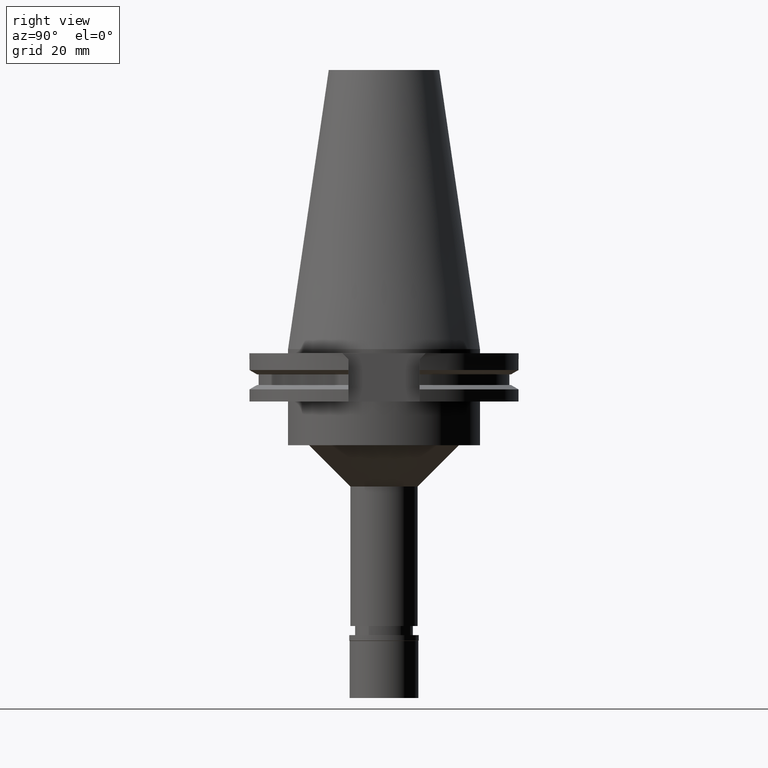
[diagram: clean part render]
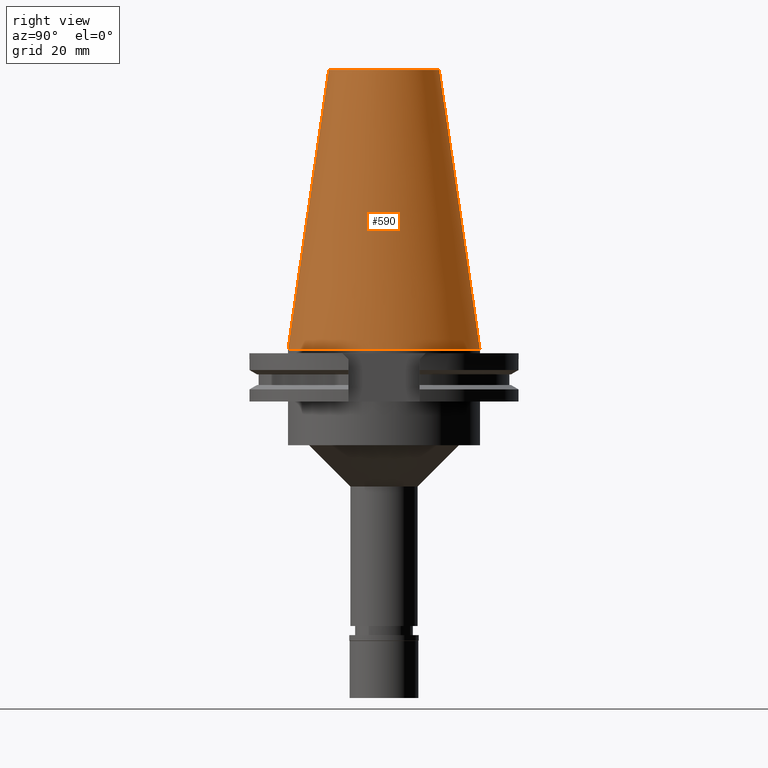
[diagram: same view with one face highlighted and labeled with its STEP entity id]
A machine part, right view. The second image highlights one B-rep face of the part: STEP entity #590.
In plain terms, the highlighted conical surface has half-angle 8.297 deg.
Its self-contained STEP definition (entity closure, byte-faithful):
#264 = VECTOR ( 'NONE', #1733, 1000.000000000000114 ) ;
#371 = DIRECTION ( 'NONE',  ( 0.0000000000000000000, 0.0000000000000000000, -1.000000000000000000 ) ) ;
#590 = ADVANCED_FACE ( 'NONE', ( #1982 ), #726, .T. ) ;
#726 = CONICAL_SURFACE ( 'NONE', #1159, 27.51666211194000056, 0.1448125860318199565 ) ;
#809 = EDGE_CURVE ( 'NONE', #969, #2576, #841, .T. ) ;
#841 = CIRCLE ( 'NONE', #2717, 20.10832422388000040 ) ;
#969 = VERTEX_POINT ( 'NONE', #1630 ) ;
#1048 = AXIS2_PLACEMENT_3D ( 'NONE', #2624, #2890, #1810 ) ;
#1159 = AXIS2_PLACEMENT_3D ( 'NONE', #3217, #371, #2219 ) ;
#1165 = CARTESIAN_POINT ( 'NONE',  ( 0.0000000000000000000, 20.10832422387000307, 101.5999999999999943 ) ) ;
#1437 = EDGE_CURVE ( 'NONE', #2576, #1624, #1653, .T. ) ;
#1492 = CARTESIAN_POINT ( 'NONE',  ( 0.0000000000000000000, 34.92499999999999716, 4.476419235289000232E-13 ) ) ;
#1570 = CARTESIAN_POINT ( 'NONE',  ( 0.0000000000000000000, 1.846767373113999857E-14, 101.5999999999999943 ) ) ;
#1583 = CARTESIAN_POINT ( 'NONE',  ( 0.0000000000000000000, -20.10832422387000307, 101.5999999999999943 ) ) ;
#1624 = VERTEX_POINT ( 'NONE', #2226 ) ;
#1630 = CARTESIAN_POINT ( 'NONE',  ( 0.0000000000000000000, 20.10832422388000040, 101.5999999999999943 ) ) ;
#1636 = DIRECTION ( 'NONE',  ( 0.0000000000000000000, -0.1443069799456937474, -0.9895329683941577192 ) ) ;
#1653 = LINE ( 'NONE', #1583, #2517 ) ;
#1687 = ORIENTED_EDGE ( 'NONE', *, *, #1437, .T. ) ;
#1733 = DIRECTION ( 'NONE',  ( 0.0000000000000000000, 0.1443069799456937474, -0.9895329683941577192 ) ) ;
#1736 = CIRCLE ( 'NONE', #1048, 34.92499999999999716 ) ;
#1810 = DIRECTION ( 'NONE',  ( 0.0000000000000000000, 1.000000000000000000, 0.0000000000000000000 ) ) ;
#1843 = ORIENTED_EDGE ( 'NONE', *, *, #809, .T. ) ;
#1982 = FACE_OUTER_BOUND ( 'NONE', #3000, .T. ) ;
#2174 = EDGE_CURVE ( 'NONE', #969, #2936, #3015, .T. ) ;
#2219 = DIRECTION ( 'NONE',  ( 0.0000000000000000000, -1.000000000000000000, 0.0000000000000000000 ) ) ;
#2226 = CARTESIAN_POINT ( 'NONE',  ( 0.0000000000000000000, -34.92499999999999716, 4.476419235289000232E-13 ) ) ;
#2241 = CARTESIAN_POINT ( 'NONE',  ( 0.0000000000000000000, -20.10832422388000040, 101.5999999999999943 ) ) ;
#2275 = DIRECTION ( 'NONE',  ( 0.0000000000000000000, 0.0000000000000000000, -1.000000000000000000 ) ) ;
#2517 = VECTOR ( 'NONE', #1636, 1000.000000000000114 ) ;
#2576 = VERTEX_POINT ( 'NONE', #2241 ) ;
#2624 = CARTESIAN_POINT ( 'NONE',  ( 0.0000000000000000000, 1.846767373113999857E-14, 8.242295734816999588E-13 ) ) ;
#2717 = AXIS2_PLACEMENT_3D ( 'NONE', #1570, #2275, #3320 ) ;
#2890 = DIRECTION ( 'NONE',  ( 0.0000000000000000000, 0.0000000000000000000, -1.000000000000000000 ) ) ;
#2936 = VERTEX_POINT ( 'NONE', #1492 ) ;
#3000 = EDGE_LOOP ( 'NONE', ( #1843, #1687, #3001, #3095 ) ) ;
#3001 = ORIENTED_EDGE ( 'NONE', *, *, #3115, .F. ) ;
#3015 = LINE ( 'NONE', #1165, #264 ) ;
#3095 = ORIENTED_EDGE ( 'NONE', *, *, #2174, .F. ) ;
#3115 = EDGE_CURVE ( 'NONE', #2936, #1624, #1736, .T. ) ;
#3217 = CARTESIAN_POINT ( 'NONE',  ( 0.0000000000000000000, 1.846767373113999857E-14, 50.79999999999999716 ) ) ;
#3320 = DIRECTION ( 'NONE',  ( 0.0000000000000000000, 1.000000000000000000, 0.0000000000000000000 ) ) ;